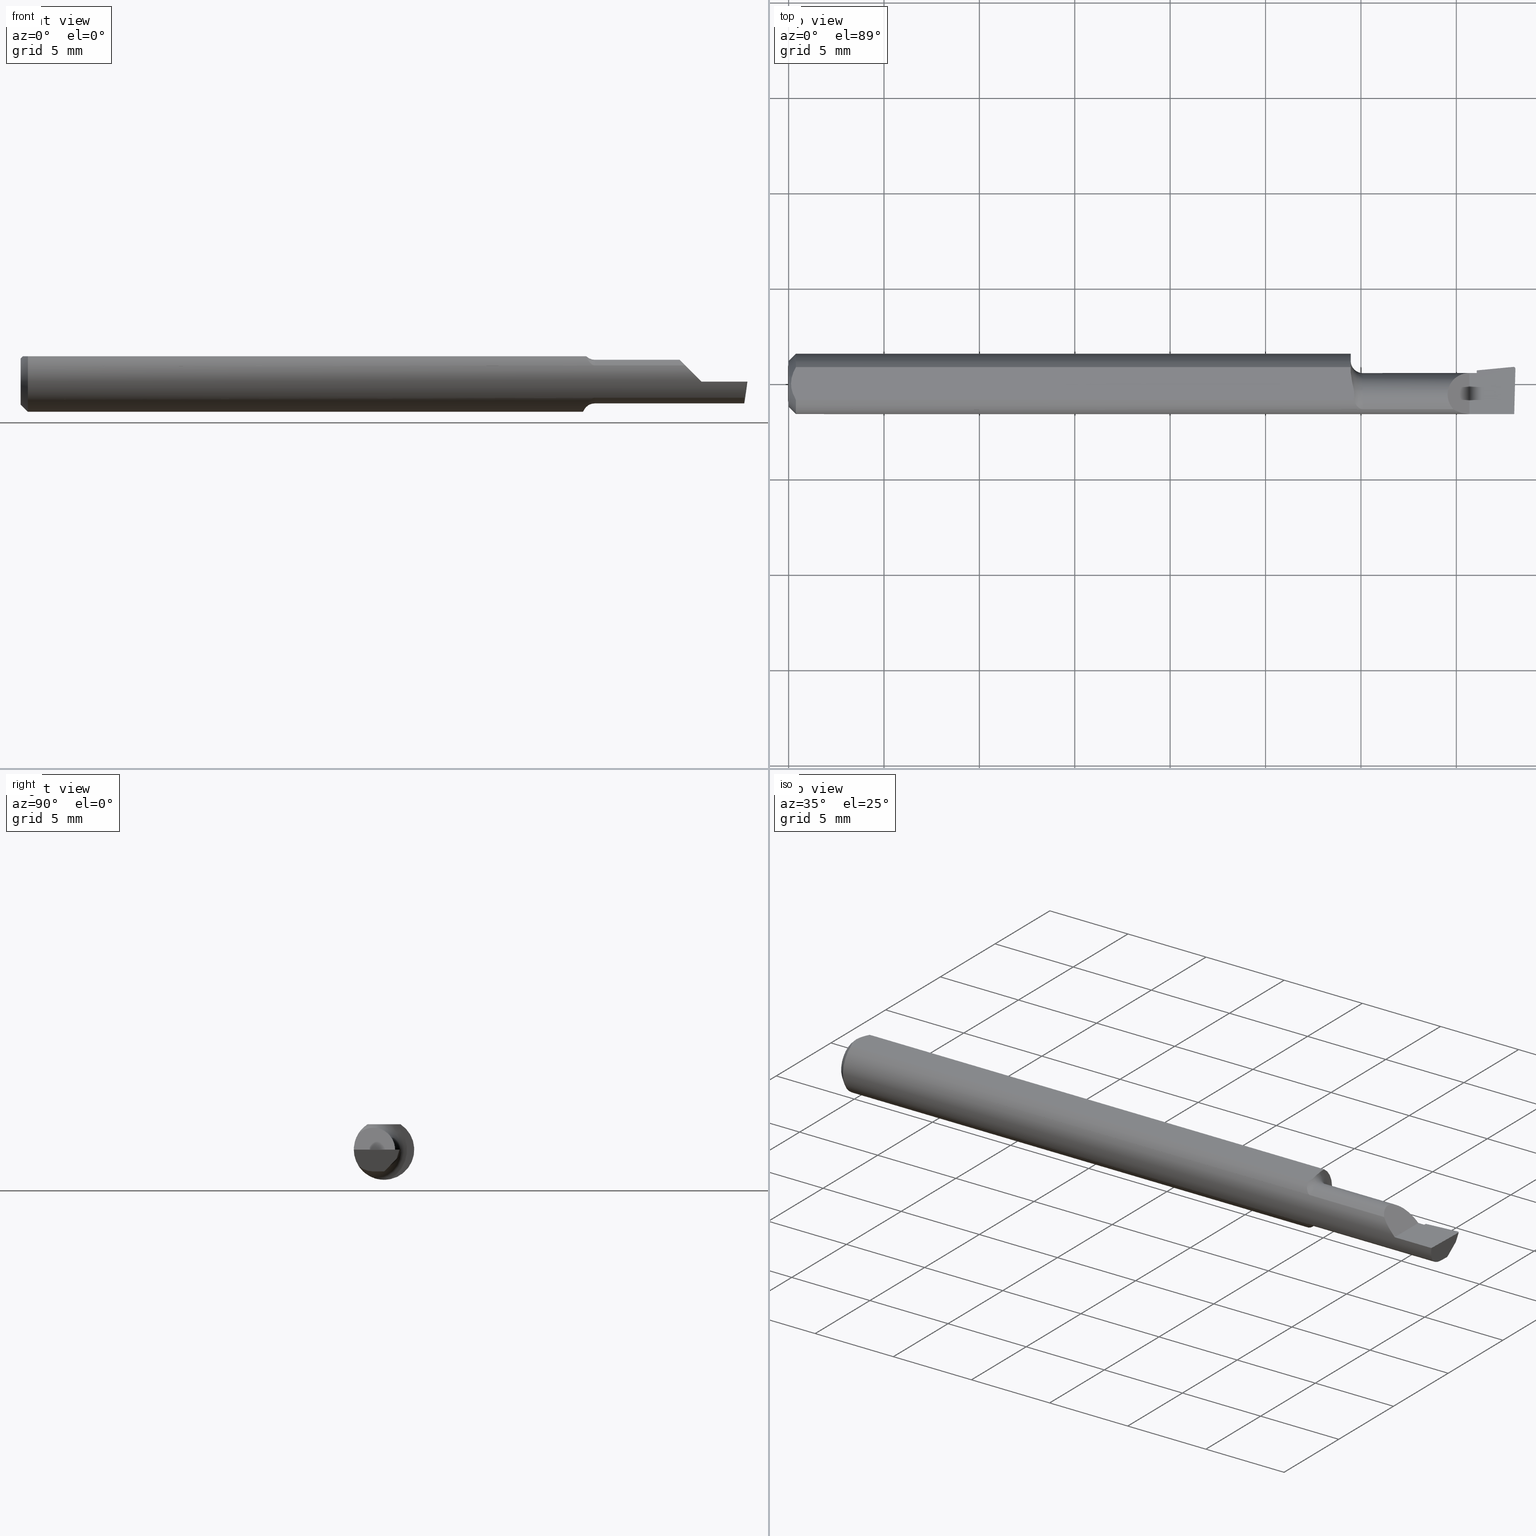
[diagram: canonical four-view strip — front | top / right | iso, engineering-drawing reading convention]
A machine part, canonical four-view strip (front | top / right | iso — engineering-drawing reading convention). The complete STEP part file that produces these views, byte-faithful:
ISO-10303-21;
HEADER;
FILE_DESCRIPTION (( 'STEP AP214' ),
    '1' );
FILE_NAME ('B100300R.STEP',
    '2020-05-08T22:22:15',
    ( '' ),
    ( '' ),
    'SwSTEP 2.0',
    'SolidWorks 2018',
    '' );
FILE_SCHEMA (( 'AUTOMOTIVE_DESIGN' ));
ENDSEC;

DATA;
#1 = LINE ( 'NONE', #372, #264 ) ;
#2 = VECTOR ( 'NONE', #171, 39.37007874015748143 ) ;
#3 = ORIENTED_EDGE ( 'NONE', *, *, #639, .F. ) ;
#4 = PRESENTATION_LAYER_ASSIGNMENT (  '', '', ( #644 ) ) ;
#5 = VECTOR ( 'NONE', #374, 39.37007874015748854 ) ;
#6 = LENGTH_MEASURE_WITH_UNIT ( LENGTH_MEASURE( 0.02539999999999999897 ), #418 );
#7 = EDGE_CURVE ( 'NONE', #462, #244, #517, .T. ) ;
#8 = ORIENTED_EDGE ( 'NONE', *, *, #9, .F. ) ;
#9 = EDGE_CURVE ( 'NONE', #100, #75, #201, .T. ) ;
#10 = DIRECTION ( 'NONE',  ( -1.000000000000000000, -0.0000000000000000000, -0.0000000000000000000 ) ) ;
#11 = CARTESIAN_POINT ( 'NONE',  ( 0.0000000000000000000, -0.02240000000000000324, 0.0000000000000000000 ) ) ;
#12 = LINE ( 'NONE', #481, #2 ) ;
#13 = CARTESIAN_POINT ( 'NONE',  ( 0.009678036133109307534, -0.02325481837211496039, 0.05235000000000000070 ) ) ;
#14 = CARTESIAN_POINT ( 'NONE',  ( 1.493589448587071544, -0.05267366071428577351, -0.03336177403790612644 ) ) ;
#15 = CARTESIAN_POINT ( 'NONE',  ( 1.498384822753108914, 0.03264131821163467062, -0.01250862198832605743 ) ) ;
#16 = DIRECTION ( 'NONE',  ( 5.691349986800549142E-18, -1.000000000000000000, 0.0000000000000000000 ) ) ;
#17 = LINE ( 'NONE', #91, #563 ) ;
#18 = ORIENTED_EDGE ( 'NONE', *, *, #45, .T. ) ;
#19 = CARTESIAN_POINT ( 'NONE',  ( 1.160000000000000142, 0.01155624999999988432, -0.06126969549408175369 ) ) ;
#20 = DIRECTION ( 'NONE',  ( -0.7071067811865432429, 0.0000000000000000000, -0.7071067811865517916 ) ) ;
#21 = UNCERTAINTY_MEASURE_WITH_UNIT (LENGTH_MEASURE( 1.000000000000000082E-05 ), #454, 'distance_accuracy_value', 'NONE');
#22 =( CONVERSION_BASED_UNIT ( 'INCH', #477 ) LENGTH_UNIT ( ) NAMED_UNIT ( #565 ) );
#23 = DIRECTION ( 'NONE',  ( 0.0000000000000000000, 0.0000000000000000000, -1.000000000000000000 ) ) ;
#24 = VERTEX_POINT ( 'NONE', #139 ) ;
#25 = PLANE ( 'NONE',  #479 ) ;
#26 = CARTESIAN_POINT ( 'NONE',  ( 1.166182189689074944, -0.03386738844375222074, 0.05235000000000000070 ) ) ;
#27 = CIRCLE ( 'NONE', #113, 0.04504999999999999283 ) ;
#28 = PLANE ( 'NONE',  #575 ) ;
#29 = EDGE_LOOP ( 'NONE', ( #411, #263 ) ) ;
#30 = DIRECTION ( 'NONE',  ( 1.000000000000000000, 0.0000000000000000000, 0.0000000000000000000 ) ) ;
#31 = CARTESIAN_POINT ( 'NONE',  ( 1.163943373083574873, -0.0009488278625737596667, 0.05234999999999998682 ) ) ;
#32 = CARTESIAN_POINT ( 'NONE',  ( 0.009669996313769784607, 0.02323004575534281385, 0.05234999999999998682 ) ) ;
#33 = PRESENTATION_LAYER_ASSIGNMENT (  '', '', ( #613 ) ) ;
#34 = DIMENSIONAL_EXPONENTS ( 1.000000000000000000, 0.0000000000000000000, 0.0000000000000000000, 0.0000000000000000000, 0.0000000000000000000, 0.0000000000000000000, 0.0000000000000000000 ) ;
#35 = CARTESIAN_POINT ( 'NONE',  ( 1.160000000000000142, 0.04764999999999997016, 0.0000000000000000000 ) ) ;
#36 = ORIENTED_EDGE ( 'NONE', *, *, #245, .F. ) ;
#37 = MECHANICAL_DESIGN_GEOMETRIC_PRESENTATION_REPRESENTATION (  '', ( #644 ), #65 ) ;
#38 = CARTESIAN_POINT ( 'NONE',  ( 1.166182189689074944, -0.03386738844375222074, 0.05235000000000000070 ) ) ;
#39 = EDGE_CURVE ( 'NONE', #574, #462, #94, .T. ) ;
#40 = EDGE_LOOP ( 'NONE', ( #588, #209, #419 ) ) ;
#41 = VECTOR ( 'NONE', #489, 39.37007874015748143 ) ;
#42 = ORIENTED_EDGE ( 'NONE', *, *, #502, .T. ) ;
#43 = CARTESIAN_POINT ( 'NONE',  ( 1.159999999999995923, 0.004792881695547034603, -0.06254535345742004426 ) ) ;
#44 = ORIENTED_EDGE ( 'NONE', *, *, #89, .F. ) ;
#45 = EDGE_CURVE ( 'NONE', #181, #198, #518, .T. ) ;
#46 = DIRECTION ( 'NONE',  ( 5.691349986800549142E-18, -1.000000000000000000, 7.598598113218357399E-17 ) ) ;
#47 = AXIS2_PLACEMENT_3D ( 'NONE', #615, #238, #662 ) ;
#48 = ORIENTED_EDGE ( 'NONE', *, *, #103, .F. ) ;
#49 = FACE_OUTER_BOUND ( 'NONE', #380, .T. ) ;
#50 = ORIENTED_EDGE ( 'NONE', *, *, #285, .F. ) ;
#51 = ORIENTED_EDGE ( 'NONE', *, *, #151, .F. ) ;
#52 = VERTEX_POINT ( 'NONE', #614 ) ;
#53 = VECTOR ( 'NONE', #668, 39.37007874015748143 ) ;
#54 = DIRECTION ( 'NONE',  ( 5.691349986800549142E-18, -1.000000000000000000, 0.0000000000000000000 ) ) ;
#55 = LINE ( 'NONE', #487, #202 ) ;
#56 = CARTESIAN_POINT ( 'NONE',  ( 1.510364203804932748, 0.03234793331252792947, -0.01400000000000000376 ) ) ;
#57 =( BOUNDED_CURVE ( )  B_SPLINE_CURVE ( 3, ( #328, #304, #651, #265 ),
 .UNSPECIFIED., .F., .T. ) 
 B_SPLINE_CURVE_WITH_KNOTS ( ( 4, 4 ),
 ( 3.064097098354602089, 3.156599629463157086 ),
 .UNSPECIFIED. ) 
 CURVE ( )  GEOMETRIC_REPRESENTATION_ITEM ( )  RATIONAL_B_SPLINE_CURVE ( ( 1.000000000000000000, 0.9992870672494015283, 0.9992870672494015283, 1.000000000000000000 ) ) 
 REPRESENTATION_ITEM ( '' )  );
#58 = ORIENTED_EDGE ( 'NONE', *, *, #210, .T. ) ;
#59 = DIRECTION ( 'NONE',  ( 5.691349986800549142E-18, -1.000000000000000000, 0.0000000000000000000 ) ) ;
#60 = ORIENTED_EDGE ( 'NONE', *, *, #103, .T. ) ;
#61 = CARTESIAN_POINT ( 'NONE',  ( 0.8971276994979847652, -0.02239999999999999977, 7.383056331043944924E-17 ) ) ;
#62 = MECHANICAL_DESIGN_GEOMETRIC_PRESENTATION_REPRESENTATION (  '', ( #613 ), #98 ) ;
#63 = CARTESIAN_POINT ( 'NONE',  ( 1.160000000000000142, 0.03386738844375224156, 0.05235000000000000070 ) ) ;
#64 = CARTESIAN_POINT ( 'NONE',  ( 1.160000000000000142, 0.02414546164772668826, 0.05235000000000000070 ) ) ;
#65 =( GEOMETRIC_REPRESENTATION_CONTEXT ( 3 ) GLOBAL_UNCERTAINTY_ASSIGNED_CONTEXT ( ( #21 ) ) GLOBAL_UNIT_ASSIGNED_CONTEXT ( ( #454, #460, #464 ) ) REPRESENTATION_CONTEXT ( 'NONE', 'WORKASPACE' ) );
#66 = CARTESIAN_POINT ( 'NONE',  ( 1.495634880358085672, 0.03522968678441162904, 5.345729797365519968E-19 ) ) ;
#67 = COLOUR_RGB ( '',0.7529411764705882248, 0.7529411764705882248, 0.7529411764705882248 ) ;
#68 = EDGE_CURVE ( 'NONE', #369, #391, #158, .T. ) ;
#69 = CARTESIAN_POINT ( 'NONE',  ( 1.499944638786153472, 0.03353584053852150942, 8.035340521517367735E-18 ) ) ;
#70 = VERTEX_POINT ( 'NONE', #19 ) ;
#71 = ORIENTED_EDGE ( 'NONE', *, *, #536, .F. ) ;
#72 = CARTESIAN_POINT ( 'NONE',  ( 1.420000000000000151, -0.006476468102432248429, -0.04504999999999998589 ) ) ;
#73 =( NAMED_UNIT ( * ) SI_UNIT ( $, .STERADIAN. ) SOLID_ANGLE_UNIT ( ) );
#74 = CARTESIAN_POINT ( 'NONE',  ( 2.249639673992788601E-32, -0.06234999999999999570, 1.836970198721030427E-16 ) ) ;
#75 = VERTEX_POINT ( 'NONE', #72 ) ;
#76 = DIRECTION ( 'NONE',  ( 1.000000000000000000, 5.691349986800549142E-18, 0.0000000000000000000 ) ) ;
#77 = CARTESIAN_POINT ( 'NONE',  ( 1.167516889514667700, -0.02435447415594420989, 0.05235000000000000070 ) ) ;
#78 = CARTESIAN_POINT ( 'NONE',  ( 0.0000000000000000000, 0.0000000000000000000, 0.0000000000000000000 ) ) ;
#79 = EDGE_CURVE ( 'NONE', #470, #213, #572, .T. ) ;
#80 = CIRCLE ( 'NONE', #138, 0.06235000000000000264 ) ;
#81 = ORIENTED_EDGE ( 'NONE', *, *, #314, .T. ) ;
#82 = CARTESIAN_POINT ( 'NONE',  ( 1.164818038875745421, -0.004579228880846302439, 0.05235000000000001458 ) ) ;
#83 = AXIS2_PLACEMENT_3D ( 'NONE', #35, #564, #239 ) ;
#84 = ORIENTED_EDGE ( 'NONE', *, *, #7, .F. ) ;
#85 = LINE ( 'NONE', #189, #356 ) ;
#86 = CARTESIAN_POINT ( 'NONE',  ( 0.01500000000000000465, 0.03386738844375223462, 0.05234999999999997988 ) ) ;
#87 = CARTESIAN_POINT ( 'NONE',  ( 1.393107270290912858, -0.06235000000000000264, 0.01189272970908752079 ) ) ;
#88 = CARTESIAN_POINT ( 'NONE',  ( 1.167873522747514325, -0.03849383661596396389, 0.04935695859860207008 ) ) ;
#89 = EDGE_CURVE ( 'NONE', #52, #470, #357, .T. ) ;
#90 = DIRECTION ( 'NONE',  ( 0.0000000000000000000, 0.9524855432518783971, -0.3045837978228226883 ) ) ;
#91 = CARTESIAN_POINT ( 'NONE',  ( 1.492951399889240971, -0.02221542591032727582, -0.04504999999999998589 ) ) ;
#92 = ORIENTED_EDGE ( 'NONE', *, *, #308, .F. ) ;
#93 = ORIENTED_EDGE ( 'NONE', *, *, #39, .F. ) ;
#94 = LINE ( 'NONE', #236, #623 ) ;
#95 = ORIENTED_EDGE ( 'NONE', *, *, #214, .T. ) ;
#96 = FACE_OUTER_BOUND ( 'NONE', #29, .T. ) ;
#97 = FACE_OUTER_BOUND ( 'NONE', #631, .T. ) ;
#98 =( GEOMETRIC_REPRESENTATION_CONTEXT ( 3 ) GLOBAL_UNCERTAINTY_ASSIGNED_CONTEXT ( ( #452 ) ) GLOBAL_UNIT_ASSIGNED_CONTEXT ( ( #22, #384, #73 ) ) REPRESENTATION_CONTEXT ( 'NONE', 'WORKASPACE' ) );
#99 = AXIS2_PLACEMENT_3D ( 'NONE', #485, #425, #59 ) ;
#100 = VERTEX_POINT ( 'NONE', #172 ) ;
#101 = VECTOR ( 'NONE', #327, 39.37007874015748143 ) ;
#102 = ORIENTED_EDGE ( 'NONE', *, *, #308, .T. ) ;
#103 = EDGE_CURVE ( 'NONE', #626, #513, #135, .T. ) ;
#104 = ORIENTED_EDGE ( 'NONE', *, *, #416, .T. ) ;
#105 = CARTESIAN_POINT ( 'NONE',  ( 1.509953961983671933, 0.03660845752520203861, 0.0000000000000000000 ) ) ;
#106 = VECTOR ( 'NONE', #675, 39.37007874015748143 ) ;
#107 = VECTOR ( 'NONE', #595, 39.37007874015748143 ) ;
#108 = ORIENTED_EDGE ( 'NONE', *, *, #147, .F. ) ;
#109 = DIRECTION ( 'NONE',  ( -0.06894566448119622548, 0.7160281025913035613, -0.6946583704589933683 ) ) ;
#110 = EDGE_CURVE ( 'NONE', #574, #626, #57, .T. ) ;
#111 = DIRECTION ( 'NONE',  ( -0.0000000000000000000, 1.000000000000000000, -0.0000000000000000000 ) ) ;
#112 = CIRCLE ( 'NONE', #324, 0.04504999999999997201 ) ;
#113 = AXIS2_PLACEMENT_3D ( 'NONE', #217, #583, #184 ) ;
#114 = CARTESIAN_POINT ( 'NONE',  ( 0.01500000000000185039, -0.03386738844380016850, 0.05235000000000000070 ) ) ;
#115 = CARTESIAN_POINT ( 'NONE',  ( 1.499880855614015962, 0.03110005946548963576, 2.797005382439469068E-20 ) ) ;
#116 = EDGE_CURVE ( 'NONE', #470, #531, #55, .T. ) ;
#117 = DIRECTION ( 'NONE',  ( 5.691349986800549142E-18, -1.000000000000000000, 0.0000000000000000000 ) ) ;
#118 = ORIENTED_EDGE ( 'NONE', *, *, #619, .F. ) ;
#119 = LINE ( 'NONE', #274, #101 ) ;
#120 = ORIENTED_EDGE ( 'NONE', *, *, #68, .F. ) ;
#121 = FACE_OUTER_BOUND ( 'NONE', #541, .T. ) ;
#122 = CARTESIAN_POINT ( 'NONE',  ( 1.420000000000000151, 0.01811171944543692874, -0.01970540757188761136 ) ) ;
#123 = CARTESIAN_POINT ( 'NONE',  ( 1.496461277308440030, 0.03065349357661048199, -0.01436668378927335663 ) ) ;
#124 = EDGE_LOOP ( 'NONE', ( #204, #667, #221 ) ) ;
#125 = CARTESIAN_POINT ( 'NONE',  ( 1.492525117049605887, -0.2498042633013223268, 9.154091479201484239E-19 ) ) ;
#126 = CARTESIAN_POINT ( 'NONE',  ( 1.381685276638327631, -0.05903713403021959572, 0.02331472336167217385 ) ) ;
#127 = CARTESIAN_POINT ( 'NONE',  ( 1.494167560590867749, 0.03076208604347173067, -0.01402709660331437347 ) ) ;
#128 = DIRECTION ( 'NONE',  ( -0.1240019227988993916, -0.3022330132596629526, -0.9451342385281364944 ) ) ;
#129 = ORIENTED_EDGE ( 'NONE', *, *, #402, .F. ) ;
#130 = CARTESIAN_POINT ( 'NONE',  ( 1.162747134522028603, 0.004017454403653751213, 0.05235000000000000764 ) ) ;
#131 = DIRECTION ( 'NONE',  ( -1.224646799147353947E-16, 0.0000000000000000000, -1.000000000000000000 ) ) ;
#132 = DIRECTION ( 'NONE',  ( 0.0000000000000000000, -1.000000000000000000, 4.268512490100411895E-17 ) ) ;
#133 = FACE_OUTER_BOUND ( 'NONE', #330, .T. ) ;
#134 = CARTESIAN_POINT ( 'NONE',  ( 0.004999999999989931769, 7.898418181085889318E-16, 0.05235000000000000070 ) ) ;
#135 =( BOUNDED_CURVE ( )  B_SPLINE_CURVE ( 3, ( #127, #123, #183, #228 ),
 .UNSPECIFIED., .F., .T. ) 
 B_SPLINE_CURVE_WITH_KNOTS ( ( 4, 4 ),
 ( 3.156599629463157086, 4.715023529952363290 ),
 .UNSPECIFIED. ) 
 CURVE ( )  GEOMETRIC_REPRESENTATION_ITEM ( )  RATIONAL_B_SPLINE_CURVE ( ( 1.000000000000000000, 0.8076450242550531344, 0.8076450242550531344, 1.000000000000000000 ) ) 
 REPRESENTATION_ITEM ( '' )  );
#136 = CARTESIAN_POINT ( 'NONE',  ( 1.179654899318486105, -0.05157034440792585689, 0.03505133412385295910 ) ) ;
#137 = CARTESIAN_POINT ( 'NONE',  ( 1.500053207916534070, 0.03152013807843875165, 0.001313657550806776901 ) ) ;
#138 = AXIS2_PLACEMENT_3D ( 'NONE', #227, #602, #282 ) ;
#139 = CARTESIAN_POINT ( 'NONE',  ( 0.0000000000000000000, 6.717187693324806899E-18, 0.04734999999999965625 ) ) ;
#140 = ORIENTED_EDGE ( 'NONE', *, *, #110, .T. ) ;
#141 = DIRECTION ( 'NONE',  ( -1.000000000000000000, -5.691349986800549142E-18, -0.0000000000000000000 ) ) ;
#142 = CARTESIAN_POINT ( 'NONE',  ( 1.497433779686219379, -0.06235000000000005121, 3.231995301756449018E-19 ) ) ;
#143 = VERTEX_POINT ( 'NONE', #205 ) ;
#144 = CARTESIAN_POINT ( 'NONE',  ( 1.302500000000000213, -0.05267366071428577351, -0.03336177403790612644 ) ) ;
#145 = FACE_OUTER_BOUND ( 'NONE', #40, .T. ) ;
#146 = VECTOR ( 'NONE', #661, 39.37007874015748854 ) ;
#147 = EDGE_CURVE ( 'NONE', #362, #391, #410, .T. ) ;
#148 = CARTESIAN_POINT ( 'NONE',  ( 1.178775713346481790, -0.05116520334387900798, -0.03564627526859115436 ) ) ;
#149 = EDGE_LOOP ( 'NONE', ( #331, #579, #42, #71, #185, #3, #303, #44 ) ) ;
#150 = VERTEX_POINT ( 'NONE', #424 ) ;
#151 = EDGE_CURVE ( 'NONE', #391, #442, #376, .T. ) ;
#152 = AXIS2_PLACEMENT_3D ( 'NONE', #618, #195, #90 ) ;
#153 = AXIS2_PLACEMENT_3D ( 'NONE', #11, #533, #476 ) ;
#154 = EDGE_CURVE ( 'NONE', #269, #626, #273, .T. ) ;
#155 = ORIENTED_EDGE ( 'NONE', *, *, #9, .T. ) ;
#156 = PRESENTATION_STYLE_ASSIGNMENT (( #415 ) ) ;
#157 = FACE_OUTER_BOUND ( 'NONE', #124, .T. ) ;
#158 = LINE ( 'NONE', #494, #106 ) ;
#159 = ORIENTED_EDGE ( 'NONE', *, *, #611, .F. ) ;
#160 = DIRECTION ( 'NONE',  ( 0.0000000000000000000, 0.0000000000000000000, 1.000000000000000000 ) ) ;
#161 = VECTOR ( 'NONE', #443, 39.37007874015748143 ) ;
#162 = EDGE_LOOP ( 'NONE', ( #260, #637, #421, #253, #388, #465, #621, #118, #81, #261 ) ) ;
#163 = ADVANCED_BREP_SHAPE_REPRESENTATION ( 'B100300R', ( #252, #176 ), #543 ) ;
#164 = CARTESIAN_POINT ( 'NONE',  ( 0.01500000000000000465, 7.635672792683746671E-18, 0.06235000000000000264 ) ) ;
#165 = DIRECTION ( 'NONE',  ( 1.000000000000000000, 5.691349986800549142E-18, 0.0000000000000000000 ) ) ;
#166 = ORIENTED_EDGE ( 'NONE', *, *, #89, .T. ) ;
#167 = CARTESIAN_POINT ( 'NONE',  ( 0.006057557792978142223, -0.01187252718384441616, 0.05234999999999998682 ) ) ;
#168 = DIRECTION ( 'NONE',  ( 0.1219104985252538326, 0.0000000000000000000, 0.9925410975618711440 ) ) ;
#169 = AXIS2_PLACEMENT_3D ( 'NONE', #386, #76, #444 ) ;
#170 = ORIENTED_EDGE ( 'NONE', *, *, #293, .T. ) ;
#171 = DIRECTION ( 'NONE',  ( 3.962974135542377331E-18, -0.6963153109074924352, -0.7177360153954949196 ) ) ;
#172 = CARTESIAN_POINT ( 'NONE',  ( 1.493548986703517656, 0.0006054938231418565677, -0.04504999999999999283 ) ) ;
#173 = DIRECTION ( 'NONE',  ( -1.000000000000000000, -5.691349986800549142E-18, -0.0000000000000000000 ) ) ;
#174 = CARTESIAN_POINT ( 'NONE',  ( 1.420000000000000151, 0.02442187865123201032, -0.01147666661066421533 ) ) ;
#175 = PRODUCT ( 'B100300R', 'B100300R', '', ( #514 ) ) ;
#176 = AXIS2_PLACEMENT_3D ( 'NONE', #467, #508, #510 ) ;
#177 = EDGE_CURVE ( 'NONE', #100, #513, #296, .T. ) ;
#178 = FILL_AREA_STYLE_COLOUR ( '', #67 ) ;
#179 = CARTESIAN_POINT ( 'NONE',  ( 1.185000000000000275, -0.02239999999999999630, 0.0000000000000000000 ) ) ;
#180 = LINE ( 'NONE', #435, #41 ) ;
#181 = VERTEX_POINT ( 'NONE', #63 ) ;
#182 = CARTESIAN_POINT ( 'NONE',  ( 1.496007920276498648, 0.03524764111161338836, 0.0000000000000000000 ) ) ;
#183 = CARTESIAN_POINT ( 'NONE',  ( 1.497690526998707305, 0.02804183703948719478, -0.01718068703854500057 ) ) ;
#184 = DIRECTION ( 'NONE',  ( 0.0000000000000000000, -1.000000000000000000, 0.0000000000000000000 ) ) ;
#185 = ORIENTED_EDGE ( 'NONE', *, *, #511, .F. ) ;
#186 = CARTESIAN_POINT ( 'NONE',  ( 1.496007920276498648, 0.03524764111161338836, 0.0000000000000000000 ) ) ;
#187 = CARTESIAN_POINT ( 'NONE',  ( 1.162172826817815530, 0.006508548278878150024, 0.05235000000000000070 ) ) ;
#188 = EDGE_CURVE ( 'NONE', #143, #75, #12, .T. ) ;
#189 = CARTESIAN_POINT ( 'NONE',  ( -2.563953169053420290E-19, 0.02264999999999996183, 1.836970198721030427E-16 ) ) ;
#190 = ORIENTED_EDGE ( 'NONE', *, *, #7, .T. ) ;
#191 = CARTESIAN_POINT ( 'NONE',  ( 1.185000000000000275, -0.05267366071428580820, 0.03336177403790609175 ) ) ;
#192 = AXIS2_PLACEMENT_3D ( 'NONE', #297, #566, #243 ) ;
#193 = CARTESIAN_POINT ( 'NONE',  ( 1.500000000000000222, 0.1123499999999999915, 0.05234999999999998682 ) ) ;
#194 = EDGE_CURVE ( 'NONE', #213, #531, #371, .T. ) ;
#195 = DIRECTION ( 'NONE',  ( -0.1240019227988993916, -0.3022330132596629526, -0.9451342385281364944 ) ) ;
#196 = CARTESIAN_POINT ( 'NONE',  ( 1.500000000000000222, -0.02239999999999999630, -0.04504999999999998589 ) ) ;
#197 = CARTESIAN_POINT ( 'NONE',  ( 0.01500000000000185039, -0.03386738844380016850, 0.05235000000000000070 ) ) ;
#198 = VERTEX_POINT ( 'NONE', #64 ) ;
#199 = EDGE_LOOP ( 'NONE', ( #104, #548, #271, #347, #527 ) ) ;
#200 = CARTESIAN_POINT ( 'NONE',  ( 1.174327038483182095, -0.04799382633214956118, -0.03989142061000430783 ) ) ;
#201 = LINE ( 'NONE', #438, #146 ) ;
#202 = VECTOR ( 'NONE', #111, 39.37007874015748143 ) ;
#203 = VECTOR ( 'NONE', #550, 39.37007874015748854 ) ;
#204 = ORIENTED_EDGE ( 'NONE', *, *, #194, .F. ) ;
#205 = CARTESIAN_POINT ( 'NONE',  ( 1.420000000000000151, -0.001476535193823069530, -0.03989625446711349277 ) ) ;
#206 =( BOUNDED_CURVE ( )  B_SPLINE_CURVE ( 3, ( #225, #69, #496, #186 ),
 .UNSPECIFIED., .F., .T. ) 
 B_SPLINE_CURVE_WITH_KNOTS ( ( 4, 4 ),
 ( 1.953092279228404671, 3.511516179717623309 ),
 .UNSPECIFIED. ) 
 CURVE ( )  GEOMETRIC_REPRESENTATION_ITEM ( )  RATIONAL_B_SPLINE_CURVE ( ( 1.000000000000000000, 0.8076450242550503589, 0.8076450242550503589, 1.000000000000000000 ) ) 
 REPRESENTATION_ITEM ( '' )  );
#207 = AXIS2_PLACEMENT_3D ( 'NONE', #78, #447, #389 ) ;
#208 = PRODUCT_DEFINITION ( 'UNKNOWN', '', #242, #587 ) ;
#209 = ORIENTED_EDGE ( 'NONE', *, *, #188, .T. ) ;
#210 = EDGE_CURVE ( 'NONE', #599, #181, #180, .T. ) ;
#211 = CARTESIAN_POINT ( 'NONE',  ( 0.0000000000000000000, 0.0000000000000000000, 0.0000000000000000000 ) ) ;
#212 = CIRCLE ( 'NONE', #169, 0.06235000000000000264 ) ;
#213 = VERTEX_POINT ( 'NONE', #643 ) ;
#214 = EDGE_CURVE ( 'NONE', #647, #462, #301, .T. ) ;
#215 = CARTESIAN_POINT ( 'NONE',  ( 0.004999999999989931769, 7.898418181085889318E-16, 0.05235000000000000070 ) ) ;
#216 = AXIS2_PLACEMENT_3D ( 'NONE', #56, #109, #633 ) ;
#217 = CARTESIAN_POINT ( 'NONE',  ( 1.420000000000000151, -0.02239999999999999630, 0.0000000000000000000 ) ) ;
#218 = EDGE_CURVE ( 'NONE', #352, #362, #119, .T. ) ;
#219 = CARTESIAN_POINT ( 'NONE',  ( 1.371638225962093838, -0.05267366071428578739, 0.03336177403790611951 ) ) ;
#220 = CARTESIAN_POINT ( 'NONE',  ( 1.420000000000000151, 0.02794687614419681318, 0.0000000000000000000 ) ) ;
#221 = ORIENTED_EDGE ( 'NONE', *, *, #116, .T. ) ;
#222 = B_SPLINE_CURVE_WITH_KNOTS ( 'NONE', 3,
 ( #501, #390, #554, #187, #130, #497, #31, #394, #82, #339, #446, #77, #335, #26 ),
 .UNSPECIFIED., .F., .F.,
 ( 4, 2, 2, 2, 2, 2, 4 ),
 ( 0.008234143088603523147, 0.008591734916881400841, 0.008770530831020339688, 0.008859928788089806509, 0.008949326745159275065, 0.009306918573437151024, 0.009664510401715026983 ),
 .UNSPECIFIED. ) ;
#223 = CARTESIAN_POINT ( 'NONE',  ( 1.495883579913029671, 0.03524764111161339530, 8.532676796529436165E-18 ) ) ;
#224 = SURFACE_STYLE_FILL_AREA ( #598 ) ;
#225 = CARTESIAN_POINT ( 'NONE',  ( 1.499880855614015962, 0.03110005946548963576, 2.797005382439469068E-20 ) ) ;
#226 = LINE ( 'NONE', #144, #53 ) ;
#227 = CARTESIAN_POINT ( 'NONE',  ( 0.01500000000000000465, 0.0000000000000000000, 0.0000000000000000000 ) ) ;
#228 = CARTESIAN_POINT ( 'NONE',  ( 1.497145952778602185, 0.02443421182165930391, -0.02084524377084975844 ) ) ;
#229 = DIRECTION ( 'NONE',  ( 1.000000000000000000, 5.691349986800549142E-18, 0.0000000000000000000 ) ) ;
#230 = ORIENTED_EDGE ( 'NONE', *, *, #154, .F. ) ;
#231 = CARTESIAN_POINT ( 'NONE',  ( 1.493880948194808544, 0.03095478369585228512, -0.01336835189448975364 ) ) ;
#232 = CIRCLE ( 'NONE', #627, 0.07004999999999995952 ) ;
#233 = FILL_AREA_STYLE_COLOUR ( '', #432 ) ;
#234 = LINE ( 'NONE', #164, #523 ) ;
#235 = DIRECTION ( 'NONE',  ( -1.000000000000000000, -5.691349986800549142E-18, -0.0000000000000000000 ) ) ;
#236 = CARTESIAN_POINT ( 'NONE',  ( 1.510364203804932748, 0.03234793331252792947, -0.01400000000000000376 ) ) ;
#237 = CARTESIAN_POINT ( 'NONE',  ( 1.420000000000000151, 0.02364685013702381988, -0.01400000000000000203 ) ) ;
#238 = DIRECTION ( 'NONE',  ( 1.000000000000000000, 0.0000000000000000000, 0.0000000000000000000 ) ) ;
#239 = DIRECTION ( 'NONE',  ( -5.691349986800549142E-18, 1.000000000000000000, 0.0000000000000000000 ) ) ;
#240 = ORIENTED_EDGE ( 'NONE', *, *, #571, .T. ) ;
#241 = ORIENTED_EDGE ( 'NONE', *, *, #325, .F. ) ;
#242 = PRODUCT_DEFINITION_FORMATION_WITH_SPECIFIED_SOURCE ( 'ANY', '', #175, .NOT_KNOWN. ) ;
#243 = DIRECTION ( 'NONE',  ( 0.0000000000000000000, 0.0000000000000000000, 1.000000000000000000 ) ) ;
#244 = VERTEX_POINT ( 'NONE', #122 ) ;
#245 = EDGE_CURVE ( 'NONE', #244, #143, #664, .T. ) ;
#246 = CARTESIAN_POINT ( 'NONE',  ( 1.168132745576695886, -0.03943215935316545656, -0.04868886658133506767 ) ) ;
#247 = VECTOR ( 'NONE', #555, 39.37007874015748854 ) ;
#248 = CLOSED_SHELL ( 'NONE', ( #468, #422, #585, #528, #635, #414, #355, #298, #473, #312, #475, #530, #365, #577, #620, #581, #567, #534, #368 ) ) ;
#249 = VERTEX_POINT ( 'NONE', #547 ) ;
#250 = EDGE_CURVE ( 'NONE', #52, #570, #634, .T. ) ;
#251 = VECTOR ( 'NONE', #165, 39.37007874015748143 ) ;
#252 = MANIFOLD_SOLID_BREP ( 'C8CBD97E-CC4C-4cc5-A546-65CA66FAC5B5-GAAFaceID16', #248 ) ;
#253 = ORIENTED_EDGE ( 'NONE', *, *, #576, .T. ) ;
#254 = AXIS2_PLACEMENT_3D ( 'NONE', #179, #493, #439 ) ;
#255 = AXIS2_PLACEMENT_3D ( 'NONE', #211, #529, #160 ) ;
#256 = EDGE_CURVE ( 'NONE', #599, #362, #80, .T. ) ;
#257 = ORIENTED_EDGE ( 'NONE', *, *, #383, .T. ) ;
#258 = VECTOR ( 'NONE', #596, 39.37007874015748143 ) ;
#259 = ORIENTED_EDGE ( 'NONE', *, *, #210, .F. ) ;
#260 = ORIENTED_EDGE ( 'NONE', *, *, #545, .F. ) ;
#261 = ORIENTED_EDGE ( 'NONE', *, *, #463, .F. ) ;
#262 = CARTESIAN_POINT ( 'NONE',  ( 0.01500000000000000465, 0.03386738844375223462, 0.05234999999999997988 ) ) ;
#263 = ORIENTED_EDGE ( 'NONE', *, *, #245, .T. ) ;
#264 = VECTOR ( 'NONE', #319, 39.37007874015748143 ) ;
#265 = CARTESIAN_POINT ( 'NONE',  ( 1.494167560590867749, 0.03076208604347173067, -0.01402709660331437347 ) ) ;
#266 = CARTESIAN_POINT ( 'NONE',  ( 1.492650040401416689, -0.03372388044486964581, -0.04504999999999998589 ) ) ;
#267 = B_SPLINE_CURVE_WITH_KNOTS ( 'NONE', 3,
 ( #348, #671, #459, #148, #515, #200, #568, #246, #622, #299, #672, #350, #43, #559 ),
 .UNSPECIFIED., .F., .F.,
 ( 4, 2, 2, 2, 2, 2, 4 ),
 ( 1.960001601931791046E-07, 0.0001315703184465656010, 0.0002629446367329380582, 0.0005256932733056829182, 0.001051190546451172530, 0.001576687819596662250, 0.002102185092742151970 ),
 .UNSPECIFIED. ) ;
#268 = PLANE ( 'NONE',  #642 ) ;
#269 = VERTEX_POINT ( 'NONE', #182 ) ;
#270 = CARTESIAN_POINT ( 'NONE',  ( 1.405000000000000249, 0.02264999999999992714, 1.163414459189985436E-17 ) ) ;
#271 = ORIENTED_EDGE ( 'NONE', *, *, #655, .T. ) ;
#272 = CARTESIAN_POINT ( 'NONE',  ( 1.497145952778602185, 0.02443421182165930391, -0.02084524377084975844 ) ) ;
#273 = LINE ( 'NONE', #591, #412 ) ;
#274 = CARTESIAN_POINT ( 'NONE',  ( 0.01500000000000000465, 0.0000000000000000000, -0.06235000000000000264 ) ) ;
#275 = PRODUCT_RELATED_PRODUCT_CATEGORY ( 'part', '', ( #175 ) ) ;
#276 = DIRECTION ( 'NONE',  ( -0.9953961983671800740, -0.09584575252021031166, 0.0000000000000000000 ) ) ;
#277 = EDGE_CURVE ( 'NONE', #70, #181, #212, .T. ) ;
#278 = SURFACE_SIDE_STYLE ('',( #224 ) ) ;
#279 = CARTESIAN_POINT ( 'NONE',  ( 1.160000000000000142, 0.1123499999999999915, 0.05234999999999998682 ) ) ;
#280 = CARTESIAN_POINT ( 'NONE',  ( 1.405000000000000249, -0.06235000000000005121, 1.163414459189985436E-17 ) ) ;
#281 = FACE_OUTER_BOUND ( 'NONE', #400, .T. ) ;
#282 = DIRECTION ( 'NONE',  ( 0.0000000000000000000, 0.0000000000000000000, 1.000000000000000000 ) ) ;
#283 = ORIENTED_EDGE ( 'NONE', *, *, #218, .F. ) ;
#284 = CARTESIAN_POINT ( 'NONE',  ( 0.004999999999989931769, 7.898418181085889318E-16, 0.05235000000000000070 ) ) ;
#285 = EDGE_CURVE ( 'NONE', #570, #269, #206, .T. ) ;
#286 = PRODUCT_DEFINITION_SHAPE ( 'NONE', 'NONE',  #208 ) ;
#287 = EDGE_LOOP ( 'NONE', ( #129, #665, #166, #309, #480, #646, #406, #108, #654, #58, #526, #630 ) ) ;
#288 = CARTESIAN_POINT ( 'NONE',  ( 1.494656860756163663, -0.05903713403021957490, -0.02331472336167221548 ) ) ;
#289 = AXIS2_PLACEMENT_3D ( 'NONE', #341, #128, #385 ) ;
#290 = AXIS2_PLACEMENT_3D ( 'NONE', #423, #420, #54 ) ;
#291 = DIRECTION ( 'NONE',  ( 0.0000000000000000000, 1.000000000000000000, -7.598598113218357399E-17 ) ) ;
#292 = CARTESIAN_POINT ( 'NONE',  ( 1.175661082963681769, -0.04915643512136035759, 0.03841395140597855112 ) ) ;
#293 = EDGE_CURVE ( 'NONE', #352, #24, #520, .T. ) ;
#294 = ORIENTED_EDGE ( 'NONE', *, *, #177, .T. ) ;
#295 = SURFACE_STYLE_FILL_AREA ( #407 ) ;
#296 = LINE ( 'NONE', #15, #434 ) ;
#297 = CARTESIAN_POINT ( 'NONE',  ( 0.0000000000000000000, 0.0000000000000000000, 0.0000000000000000000 ) ) ;
#298 = ADVANCED_FACE ( 'NONE', ( #387 ), #25, .F. ) ;
#299 = CARTESIAN_POINT ( 'NONE',  ( 1.162728993423048696, -0.02215482600002533983, -0.05866202889160992279 ) ) ;
#300 = EDGE_LOOP ( 'NONE', ( #230, #50, #569, #48 ) ) ;
#301 = LINE ( 'NONE', #174, #258 ) ;
#302 = VERTEX_POINT ( 'NONE', #336 ) ;
#303 = ORIENTED_EDGE ( 'NONE', *, *, #116, .F. ) ;
#304 = CARTESIAN_POINT ( 'NONE',  ( 1.493922339957150847, 0.03076476189203174519, -0.01400000000000001070 ) ) ;
#305 = FACE_OUTER_BOUND ( 'NONE', #472, .T. ) ;
#306 = ORIENTED_EDGE ( 'NONE', *, *, #463, .T. ) ;
#307 = ORIENTED_EDGE ( 'NONE', *, *, #154, .T. ) ;
#308 = EDGE_CURVE ( 'NONE', #471, #574, #315, .T. ) ;
#309 = ORIENTED_EDGE ( 'NONE', *, *, #79, .T. ) ;
#310 = EDGE_LOOP ( 'NONE', ( #294, #430, #461, #378, #578, #553 ) ) ;
#311 = PLANE ( 'NONE',  #216 ) ;
#312 = ADVANCED_FACE ( 'NONE', ( #305 ), #337, .F. ) ;
#313 = CARTESIAN_POINT ( 'NONE',  ( 1.493798075755717214, 0.03075279661035064047, -0.01400000000000000376 ) ) ;
#314 = EDGE_CURVE ( 'NONE', #143, #670, #499, .T. ) ;
#315 = LINE ( 'NONE', #231, #247 ) ;
#316 = VERTEX_POINT ( 'NONE', #503 ) ;
#317 = DIRECTION ( 'NONE',  ( 0.0000000000000000000, 0.0000000000000000000, 1.000000000000000000 ) ) ;
#318 =( BOUNDED_CURVE ( )  B_SPLINE_CURVE ( 3, ( #549, #223, #436, #66 ),
 .UNSPECIFIED., .F., .T. ) 
 B_SPLINE_CURVE_WITH_KNOTS ( ( 4, 4 ),
 ( 3.511516179717623309, 3.604018710826139671 ),
 .UNSPECIFIED. ) 
 CURVE ( )  GEOMETRIC_REPRESENTATION_ITEM ( )  RATIONAL_B_SPLINE_CURVE ( ( 1.000000000000000000, 0.9992870672494020834, 0.9992870672494020834, 1.000000000000000000 ) ) 
 REPRESENTATION_ITEM ( '' )  );
#319 = DIRECTION ( 'NONE',  ( 0.0000000000000000000, 1.000000000000000000, -4.268512490100411895E-17 ) ) ;
#320 = CYLINDRICAL_SURFACE ( 'NONE', #152, 0.004000000000000000083 ) ;
#321 = AXIS2_PLACEMENT_3D ( 'NONE', #649, #551, #23 ) ;
#322 = DIRECTION ( 'NONE',  ( -0.1240019227988993777, -0.3022330132596628971, -0.9451342385281363834 ) ) ;
#323 = LENGTH_MEASURE_WITH_UNIT ( LENGTH_MEASURE( 0.02539999999999999897 ), #562 );
#324 = AXIS2_PLACEMENT_3D ( 'NONE', #552, #229, #604 ) ;
#325 = EDGE_CURVE ( 'NONE', #442, #599, #582, .T. ) ;
#326 = FACE_OUTER_BOUND ( 'NONE', #310, .T. ) ;
#327 = DIRECTION ( 'NONE',  ( 0.7071067811865395791, 0.0000000000000000000, -0.7071067811865554553 ) ) ;
#328 = CARTESIAN_POINT ( 'NONE',  ( 1.493798075755717214, 0.03075279661035064047, -0.01400000000000000376 ) ) ;
#329 = DIRECTION ( 'NONE',  ( -0.7071067811865516806, 0.0000000000000000000, 0.7071067811865431318 ) ) ;
#330 = EDGE_LOOP ( 'NONE', ( #93, #140, #60, #364, #155, #370, #36, #84 ) ) ;
#331 = ORIENTED_EDGE ( 'NONE', *, *, #250, .T. ) ;
#332 =( LENGTH_UNIT ( ) NAMED_UNIT ( * ) SI_UNIT ( $, .METRE. ) );
#333 = ORIENTED_EDGE ( 'NONE', *, *, #502, .F. ) ;
#334 = CARTESIAN_POINT ( 'NONE',  ( 1.405000000000000249, -0.2500000000000000555, 1.163414459189985436E-17 ) ) ;
#335 = CARTESIAN_POINT ( 'NONE',  ( 1.167065763150419766, -0.02914627190158987358, 0.05234999999999998682 ) ) ;
#336 = CARTESIAN_POINT ( 'NONE',  ( 1.185000000000000275, -0.05267366071428584290, -0.03336177403790605706 ) ) ;
#337 = PLANE ( 'NONE',  #557 ) ;
#338 = EDGE_LOOP ( 'NONE', ( #159, #610, #521, #512, #283 ) ) ;
#339 = CARTESIAN_POINT ( 'NONE',  ( 1.166144749454605112, -0.01034308142135322885, 0.05235000000000000764 ) ) ;
#340 = CARTESIAN_POINT ( 'NONE',  ( 0.006064493299689842180, 0.01189382783781397189, 0.05235000000000000070 ) ) ;
#341 = CARTESIAN_POINT ( 'NONE',  ( 1.485933158780053276, 0.006882228698993217257, -0.07557081307649680946 ) ) ;
#342 = PLANE ( 'NONE',  #83 ) ;
#343 = CARTESIAN_POINT ( 'NONE',  ( 1.405000000000000249, -0.06235000000000005121, 1.163414459189985436E-17 ) ) ;
#344 = CARTESIAN_POINT ( 'NONE',  ( 1.169899083742320656, -0.04251446938472884518, 0.04588310374207919817 ) ) ;
#345 = FACE_OUTER_BOUND ( 'NONE', #199, .T. ) ;
#346 = ORIENTED_EDGE ( 'NONE', *, *, #511, .T. ) ;
#347 = ORIENTED_EDGE ( 'NONE', *, *, #648, .T. ) ;
#348 = CARTESIAN_POINT ( 'NONE',  ( 1.185000000000000275, -0.05267366071428584290, -0.03336177403790605706 ) ) ;
#349 = EDGE_CURVE ( 'NONE', #513, #570, #478, .T. ) ;
#350 = CARTESIAN_POINT ( 'NONE',  ( 1.160276440363477324, -0.002103274276245872560, -0.06268864719924563400 ) ) ;
#351 = CIRCLE ( 'NONE', #254, 0.04504999999999996507 ) ;
#352 = VERTEX_POINT ( 'NONE', #449 ) ;
#353 = CARTESIAN_POINT ( 'NONE',  ( 1.420000000000000151, 0.003839959974368444863, -0.03441620828959359585 ) ) ;
#354 = AXIS2_PLACEMENT_3D ( 'NONE', #426, #638, #317 ) ;
#355 = ADVANCED_FACE ( 'NONE', ( #609 ), #507, .F. ) ;
#356 = VECTOR ( 'NONE', #448, 39.37007874015748143 ) ;
#357 = LINE ( 'NONE', #74, #506 ) ;
#358 = CARTESIAN_POINT ( 'NONE',  ( 1.420000000000000151, -0.02239999999999999630, -0.04504999999999998589 ) ) ;
#359 = AXIS2_PLACEMENT_3D ( 'NONE', #334, #20, #329 ) ;
#360 = EDGE_CURVE ( 'NONE', #198, #70, #232, .T. ) ;
#361 =( CONVERSION_BASED_UNIT ( 'INCH', #323 ) LENGTH_UNIT ( ) NAMED_UNIT ( #560 ) );
#362 = VERTEX_POINT ( 'NONE', #398 ) ;
#363 = ORIENTED_EDGE ( 'NONE', *, *, #39, .T. ) ;
#364 = ORIENTED_EDGE ( 'NONE', *, *, #177, .F. ) ;
#365 = ADVANCED_FACE ( 'NONE', ( #121 ), #342, .T. ) ;
#366 =( NAMED_UNIT ( * ) PLANE_ANGLE_UNIT ( ) SI_UNIT ( $, .RADIAN. ) );
#367 =( NAMED_UNIT ( * ) SI_UNIT ( $, .STERADIAN. ) SOLID_ANGLE_UNIT ( ) );
#368 = ADVANCED_FACE ( 'NONE', ( #404 ), #320, .T. ) ;
#369 = VERTEX_POINT ( 'NONE', #38 ) ;
#370 = ORIENTED_EDGE ( 'NONE', *, *, #188, .F. ) ;
#371 =( BOUNDED_CURVE ( )  B_SPLINE_CURVE ( 3, ( #219, #486, #593, #270 ),
 .UNSPECIFIED., .F., .F. ) 
 B_SPLINE_CURVE_WITH_KNOTS ( ( 4, 4 ),
 ( 5.546277306536651963, 7.853981633974482790 ),
 .UNSPECIFIED. ) 
 CURVE ( )  GEOMETRIC_REPRESENTATION_ITEM ( )  RATIONAL_B_SPLINE_CURVE ( ( 1.000000000000000000, 0.6033122017619988453, 0.6033122017619988453, 1.000000000000000000 ) ) 
 REPRESENTATION_ITEM ( '' )  );
#372 = CARTESIAN_POINT ( 'NONE',  ( 1.420000000000000151, -0.02239999999999999630, -0.04504999999999998589 ) ) ;
#373 = CYLINDRICAL_SURFACE ( 'NONE', #153, 0.04504999999999997201 ) ;
#374 = DIRECTION ( 'NONE',  ( 0.9953961983671786307, 0.09584575252022466130, -1.219008768213809603E-16 ) ) ;
#375 = DIRECTION ( 'NONE',  ( 0.1053106618241427955, 0.6976485211320179181, 0.7086580314005263004 ) ) ;
#376 = B_SPLINE_CURVE_WITH_KNOTS ( 'NONE', 3,
 ( #114, #484, #13, #167, #538, #215 ),
 .UNSPECIFIED., .F., .F.,
 ( 4, 2, 4 ),
 ( 0.002133667072902290657, 0.002585433046183636171, 0.003037199019464981685 ),
 .UNSPECIFIED. ) ;
#377 = CARTESIAN_POINT ( 'NONE',  ( 1.490592351376191838, -0.04680632761517485724, -0.05901368851803158455 ) ) ;
#378 = ORIENTED_EDGE ( 'NONE', *, *, #624, .F. ) ;
#379 = ORIENTED_EDGE ( 'NONE', *, *, #611, .T. ) ;
#380 = EDGE_LOOP ( 'NONE', ( #409, #483, #451, #636, #524 ) ) ;
#381 = CARTESIAN_POINT ( 'NONE',  ( 1.420000000000000151, 0.003839959974368444863, -0.03441620828959359585 ) ) ;
#382 = PLANE ( 'NONE',  #359 ) ;
#383 = EDGE_CURVE ( 'NONE', #100, #316, #17, .T. ) ;
#384 =( NAMED_UNIT ( * ) PLANE_ANGLE_UNIT ( ) SI_UNIT ( $, .RADIAN. ) );
#385 = DIRECTION ( 'NONE',  ( 0.0000000000000000000, 0.9524855432518783971, -0.3045837978228226883 ) ) ;
#386 = CARTESIAN_POINT ( 'NONE',  ( 1.160000000000000142, 0.0000000000000000000, 0.0000000000000000000 ) ) ;
#387 = FACE_OUTER_BOUND ( 'NONE', #149, .T. ) ;
#388 = ORIENTED_EDGE ( 'NONE', *, *, #194, .T. ) ;
#389 = DIRECTION ( 'NONE',  ( 0.0000000000000000000, 0.0000000000000000000, 1.000000000000000000 ) ) ;
#390 = CARTESIAN_POINT ( 'NONE',  ( 1.160000000000000142, 0.01903747135664269480, 0.05235000000000000070 ) ) ;
#391 = VERTEX_POINT ( 'NONE', #197 ) ;
#392 = CIRCLE ( 'NONE', #255, 0.04734999999999965625 ) ;
#393 = DIRECTION ( 'NONE',  ( 0.0000000000000000000, 0.0000000000000000000, -1.000000000000000000 ) ) ;
#394 = CARTESIAN_POINT ( 'NONE',  ( 1.164543615195409831, -0.003431463083333151191, 0.05235000000000000764 ) ) ;
#395 = CARTESIAN_POINT ( 'NONE',  ( 0.01218518006020415448, 0.02868529347538067639, 0.05235000000000000070 ) ) ;
#396 = CYLINDRICAL_SURFACE ( 'NONE', #289, 0.004000000000000000083 ) ;
#397 = CARTESIAN_POINT ( 'NONE',  ( 1.420000000000000151, 0.02794687614419801361, 1.835460370743176819E-16 ) ) ;
#398 = CARTESIAN_POINT ( 'NONE',  ( 0.01500000000000000465, 0.0000000000000000000, -0.06235000000000000264 ) ) ;
#399 = APPLICATION_PROTOCOL_DEFINITION ( 'draft international standard', 'automotive_design', 1998, #405 ) ;
#400 = EDGE_LOOP ( 'NONE', ( #333, #307, #537, #92 ) ) ;
#401 = ORIENTED_EDGE ( 'NONE', *, *, #655, .F. ) ;
#402 = EDGE_CURVE ( 'NONE', #249, #302, #226, .T. ) ;
#403 = DIRECTION ( 'NONE',  ( -0.02617694830784707619, -0.9996573249755579260, 4.246274422243624484E-17 ) ) ;
#404 = FACE_OUTER_BOUND ( 'NONE', #300, .T. ) ;
#405 = APPLICATION_CONTEXT ( 'automotive_design' ) ;
#406 = ORIENTED_EDGE ( 'NONE', *, *, #68, .T. ) ;
#407 = FILL_AREA_STYLE ('',( #233 ) ) ;
#408 = TOROIDAL_SURFACE ( 'NONE', #573, 0.07004999999999995952, 0.02500000000000000486 ) ;
#409 = ORIENTED_EDGE ( 'NONE', *, *, #584, .F. ) ;
#410 = CIRCLE ( 'NONE', #354, 0.06235000000000000264 ) ;
#411 = ORIENTED_EDGE ( 'NONE', *, *, #619, .T. ) ;
#412 = VECTOR ( 'NONE', #322, 39.37007874015748854 ) ;
#413 = SURFACE_SIDE_STYLE ('',( #295 ) ) ;
#414 = ADVANCED_FACE ( 'NONE', ( #590 ), #525, .T. ) ;
#415 = SURFACE_STYLE_USAGE ( .BOTH. , #413 ) ;
#416 = EDGE_CURVE ( 'NONE', #302, #70, #267, .T. ) ;
#417 = LINE ( 'NONE', #495, #161 ) ;
#418 =( LENGTH_UNIT ( ) NAMED_UNIT ( * ) SI_UNIT ( $, .METRE. ) );
#419 = ORIENTED_EDGE ( 'NONE', *, *, #571, .F. ) ;
#420 = DIRECTION ( 'NONE',  ( -1.000000000000000000, -5.691349986800549142E-18, 0.0000000000000000000 ) ) ;
#421 = ORIENTED_EDGE ( 'NONE', *, *, #469, .F. ) ;
#422 = ADVANCED_FACE ( 'NONE', ( #666 ), #457, .T. ) ;
#423 = CARTESIAN_POINT ( 'NONE',  ( 1.420000000000000151, 0.02794687614419681318, 0.0000000000000000000 ) ) ;
#424 = CARTESIAN_POINT ( 'NONE',  ( 1.185000000000000275, -0.05267366071428580820, 0.03336177403790609175 ) ) ;
#425 = DIRECTION ( 'NONE',  ( -1.000000000000000000, -5.691349986800549142E-18, 0.0000000000000000000 ) ) ;
#426 = CARTESIAN_POINT ( 'NONE',  ( 0.01500000000000000465, 0.0000000000000000000, 0.0000000000000000000 ) ) ;
#427 = CARTESIAN_POINT ( 'NONE',  ( 1.420000000000000151, 0.02265000000000000346, 1.836970198721031660E-16 ) ) ;
#428 = AXIS2_PLACEMENT_3D ( 'NONE', #105, #450, #606 ) ;
#429 = DIRECTION ( 'NONE',  ( 3.962974135542377331E-18, -0.6963153109074924352, -0.7177360153954949196 ) ) ;
#430 = ORIENTED_EDGE ( 'NONE', *, *, #349, .T. ) ;
#431 = CARTESIAN_POINT ( 'NONE',  ( 1.405000000000000249, 0.02264999999999992714, 1.163414459189985436E-17 ) ) ;
#432 = COLOUR_RGB ( '',0.7529411764705882248, 0.7529411764705882248, 0.7529411764705882248 ) ;
#433 = EDGE_CURVE ( 'NONE', #542, #244, #27, .T. ) ;
#434 = VECTOR ( 'NONE', #375, 39.37007874015748854 ) ;
#435 = CARTESIAN_POINT ( 'NONE',  ( 0.0000000000000000000, 0.03386738844375223462, 0.05234999999999997988 ) ) ;
#436 = CARTESIAN_POINT ( 'NONE',  ( 1.495759144559519527, 0.03524165206609279621, 8.547915732267098835E-18 ) ) ;
#437 = DIRECTION ( 'NONE',  ( 3.962974135542377331E-18, -0.6963153109074924352, -0.7177360153954949196 ) ) ;
#438 = CARTESIAN_POINT ( 'NONE',  ( 1.497745910775796441, 0.001009611647418858643, -0.04504999999999998589 ) ) ;
#439 = DIRECTION ( 'NONE',  ( 0.0000000000000000000, -1.000000000000000000, 0.0000000000000000000 ) ) ;
#440 = EDGE_LOOP ( 'NONE', ( #401, #491, #259, #241, #51, #120 ) ) ;
#441 = LINE ( 'NONE', #61, #5 ) ;
#442 = VERTEX_POINT ( 'NONE', #284 ) ;
#443 = DIRECTION ( 'NONE',  ( -1.000000000000000000, 5.691349986800548372E-18, -0.0000000000000000000 ) ) ;
#444 = DIRECTION ( 'NONE',  ( 0.0000000000000000000, 1.000000000000000000, 0.0000000000000000000 ) ) ;
#445 = VECTOR ( 'NONE', #429, 39.37007874015748143 ) ;
#446 = CARTESIAN_POINT ( 'NONE',  ( 1.167029704074272312, -0.01497150789875727542, 0.05235000000000000764 ) ) ;
#447 = DIRECTION ( 'NONE',  ( -1.000000000000000000, -0.0000000000000000000, -0.0000000000000000000 ) ) ;
#448 = DIRECTION ( 'NONE',  ( 1.000000000000000000, 5.691349986800549142E-18, 0.0000000000000000000 ) ) ;
#449 = CARTESIAN_POINT ( 'NONE',  ( 0.0000000000000000000, 0.0000000000000000000, -0.04734999999999965625 ) ) ;
#450 = DIRECTION ( 'NONE',  ( -0.09165774897393340337, 0.9519021185660613282, -0.2923717047227305521 ) ) ;
#451 = ORIENTED_EDGE ( 'NONE', *, *, #218, .T. ) ;
#452 = UNCERTAINTY_MEASURE_WITH_UNIT (LENGTH_MEASURE( 1.000000000000000082E-05 ), #22, 'distance_accuracy_value', 'NONE');
#453 = DIRECTION ( 'NONE',  ( 0.1240019227988993500, 0.3022330132596628416, 0.9451342385281363834 ) ) ;
#454 =( CONVERSION_BASED_UNIT ( 'INCH', #6 ) LENGTH_UNIT ( ) NAMED_UNIT ( #34 ) );
#455 = CARTESIAN_POINT ( 'NONE',  ( 1.183537604150741274, -0.05267366071513947950, 0.03336177403655855161 ) ) ;
#456 = CARTESIAN_POINT ( 'NONE',  ( 1.160000000000000142, -0.02239999999999999630, 0.0000000000000000000 ) ) ;
#457 = CONICAL_SURFACE ( 'NONE', #47, 0.06235000000000000264, 0.7853981633974594923 ) ;
#458 = CARTESIAN_POINT ( 'NONE',  ( 1.495973035530412831, -0.06235000000000003734, -0.01189272970908753987 ) ) ;
#459 = CARTESIAN_POINT ( 'NONE',  ( 1.181592203943254704, -0.05228879390856555620, -0.03397671269166899211 ) ) ;
#460 =( NAMED_UNIT ( * ) PLANE_ANGLE_UNIT ( ) SI_UNIT ( $, .RADIAN. ) );
#461 = ORIENTED_EDGE ( 'NONE', *, *, #250, .F. ) ;
#462 = VERTEX_POINT ( 'NONE', #237 ) ;
#463 = EDGE_CURVE ( 'NONE', #316, #670, #417, .T. ) ;
#464 =( NAMED_UNIT ( * ) SI_UNIT ( $, .STERADIAN. ) SOLID_ANGLE_UNIT ( ) );
#465 = ORIENTED_EDGE ( 'NONE', *, *, #639, .T. ) ;
#466 = ORIENTED_EDGE ( 'NONE', *, *, #360, .T. ) ;
#467 = CARTESIAN_POINT ( 'NONE',  ( 0.0000000000000000000, 0.0000000000000000000, 0.0000000000000000000 ) ) ;
#468 = ADVANCED_FACE ( 'NONE', ( #281 ), #396, .T. ) ;
#469 = EDGE_CURVE ( 'NONE', #150, #302, #351, .T. ) ;
#470 = VERTEX_POINT ( 'NONE', #280 ) ;
#471 = VERTEX_POINT ( 'NONE', #601 ) ;
#472 = EDGE_LOOP ( 'NONE', ( #170, #379 ) ) ;
#473 = ADVANCED_FACE ( 'NONE', ( #157 ), #382, .F. ) ;
#474 = DIRECTION ( 'NONE',  ( 0.7071067811865395791, 8.659560562355030233E-17, 0.7071067811865554553 ) ) ;
#475 = ADVANCED_FACE ( 'NONE', ( #49 ), #592, .T. ) ;
#476 = DIRECTION ( 'NONE',  ( 5.691349986800549913E-18, -1.000000000000000000, 0.0000000000000000000 ) ) ;
#477 = LENGTH_MEASURE_WITH_UNIT ( LENGTH_MEASURE( 0.02539999999999999897 ), #332 );
#478 = LINE ( 'NONE', #137, #625 ) ;
#479 = AXIS2_PLACEMENT_3D ( 'NONE', #653, #131, #498 ) ;
#480 = ORIENTED_EDGE ( 'NONE', *, *, #576, .F. ) ;
#481 = CARTESIAN_POINT ( 'NONE',  ( 1.420000000000000151, 0.003839959974368444863, -0.03441620828959359585 ) ) ;
#482 = PLANE ( 'NONE',  #99 ) ;
#483 = ORIENTED_EDGE ( 'NONE', *, *, #293, .F. ) ;
#484 = CARTESIAN_POINT ( 'NONE',  ( 0.01216137397042175820, -0.02864146636719541034, 0.05235000000000000070 ) ) ;
#485 = CARTESIAN_POINT ( 'NONE',  ( 1.420000000000000151, 0.02794687614419681318, 0.0000000000000000000 ) ) ;
#486 = CARTESIAN_POINT ( 'NONE',  ( 1.341051366671215384, -0.01896673977657555368, 0.06394863332878404638 ) ) ;
#487 = CARTESIAN_POINT ( 'NONE',  ( 1.405000000000000249, -0.2500000000000000555, 1.163414459189985436E-17 ) ) ;
#488 = DIRECTION ( 'NONE',  ( -1.000000000000000000, -5.691349986800549142E-18, 0.0000000000000000000 ) ) ;
#489 = DIRECTION ( 'NONE',  ( 1.000000000000000000, 0.0000000000000000000, 0.0000000000000000000 ) ) ;
#490 = ORIENTED_EDGE ( 'NONE', *, *, #433, .F. ) ;
#491 = ORIENTED_EDGE ( 'NONE', *, *, #45, .F. ) ;
#492 = CARTESIAN_POINT ( 'NONE',  ( 1.371638225962093838, -0.05267366071428578739, 0.03336177403790611951 ) ) ;
#493 = DIRECTION ( 'NONE',  ( -1.000000000000000000, -5.691349986800549142E-18, -0.0000000000000000000 ) ) ;
#494 = CARTESIAN_POINT ( 'NONE',  ( 0.0000000000000000000, -0.03386738844375222768, 0.05234999999999997988 ) ) ;
#495 = CARTESIAN_POINT ( 'NONE',  ( 1.500000000000000222, -0.02239999999999999630, -0.04504999999999998589 ) ) ;
#496 = CARTESIAN_POINT ( 'NONE',  ( 1.498346190944504830, 0.03524764111161336755, 8.231093924805310805E-18 ) ) ;
#497 = CARTESIAN_POINT ( 'NONE',  ( 1.163640393495456893, 0.0002918085034137845170, 0.05234999999999998682 ) ) ;
#498 = DIRECTION ( 'NONE',  ( -1.000000000000000000, 0.0000000000000000000, 1.224646799147353947E-16 ) ) ;
#499 = CIRCLE ( 'NONE', #522, 0.04504999999999999283 ) ;
#500 = ORIENTED_EDGE ( 'NONE', *, *, #277, .T. ) ;
#501 = CARTESIAN_POINT ( 'NONE',  ( 1.160000000000000142, 0.02414546164772668826, 0.05235000000000000070 ) ) ;
#502 = EDGE_CURVE ( 'NONE', #269, #471, #318, .T. ) ;
#503 = CARTESIAN_POINT ( 'NONE',  ( 1.492946566646605078, -0.02239999999999999630, -0.04504999999999998589 ) ) ;
#504 = CARTESIAN_POINT ( 'NONE',  ( 1.182134555967766731, -0.05240678568573015755, 0.03378794548805856557 ) ) ;
#505 = FACE_OUTER_BOUND ( 'NONE', #546, .T. ) ;
#506 = VECTOR ( 'NONE', #10, 39.37007874015748143 ) ;
#507 = PLANE ( 'NONE',  #659 ) ;
#508 = DIRECTION ( 'NONE',  ( 0.0000000000000000000, 0.0000000000000000000, 1.000000000000000000 ) ) ;
#509 = DIRECTION ( 'NONE',  ( 0.0000000000000000000, -1.000000000000000000, 0.0000000000000000000 ) ) ;
#510 = DIRECTION ( 'NONE',  ( 1.000000000000000000, 0.0000000000000000000, 0.0000000000000000000 ) ) ;
#511 = EDGE_CURVE ( 'NONE', #542, #647, #603, .T. ) ;
#512 = ORIENTED_EDGE ( 'NONE', *, *, #256, .T. ) ;
#513 = VERTEX_POINT ( 'NONE', #272 ) ;
#514 = PRODUCT_CONTEXT ( 'NONE', #405, 'mechanical' ) ;
#515 = CARTESIAN_POINT ( 'NONE',  ( 1.177568494155622592, -0.05043275970182651419, -0.03668598949093543338 ) ) ;
#516 = APPLICATION_CONTEXT ( 'automotive_design' ) ;
#517 = LINE ( 'NONE', #353, #445 ) ;
#518 = LINE ( 'NONE', #279, #608 ) ;
#519 = APPLICATION_PROTOCOL_DEFINITION ( 'draft international standard', 'automotive_design', 1998, #516 ) ;
#520 = CIRCLE ( 'NONE', #207, 0.04734999999999965625 ) ;
#521 = ORIENTED_EDGE ( 'NONE', *, *, #325, .T. ) ;
#522 = AXIS2_PLACEMENT_3D ( 'NONE', #558, #235, #612 ) ;
#523 = VECTOR ( 'NONE', #474, 39.37007874015748143 ) ;
#524 = ORIENTED_EDGE ( 'NONE', *, *, #151, .T. ) ;
#525 = CYLINDRICAL_SURFACE ( 'NONE', #192, 0.06235000000000000264 ) ;
#526 = ORIENTED_EDGE ( 'NONE', *, *, #277, .F. ) ;
#527 = ORIENTED_EDGE ( 'NONE', *, *, #469, .T. ) ;
#528 = ADVANCED_FACE ( 'NONE', ( #145 ), #544, .T. ) ;
#529 = DIRECTION ( 'NONE',  ( -1.000000000000000000, -0.0000000000000000000, -0.0000000000000000000 ) ) ;
#530 = ADVANCED_FACE ( 'NONE', ( #345 ), #408, .F. ) ;
#531 = VERTEX_POINT ( 'NONE', #431 ) ;
#532 = PLANE ( 'NONE',  #290 ) ;
#533 = DIRECTION ( 'NONE',  ( -1.000000000000000000, -5.691349986800549142E-18, -0.0000000000000000000 ) ) ;
#534 = ADVANCED_FACE ( 'NONE', ( #326 ), #268, .F. ) ;
#535 = LINE ( 'NONE', #586, #251 ) ;
#536 = EDGE_CURVE ( 'NONE', #647, #471, #441, .T. ) ;
#537 = ORIENTED_EDGE ( 'NONE', *, *, #110, .F. ) ;
#538 = CARTESIAN_POINT ( 'NONE',  ( 0.004999999999998879473, -0.005957634400466955450, 0.05235000000000000070 ) ) ;
#539 = DIRECTION ( 'NONE',  ( -0.9922060308645520577, 0.02598182930466753221, 0.1218693434051185409 ) ) ;
#540 = AXIS2_PLACEMENT_3D ( 'NONE', #220, #488, #117 ) ;
#541 = EDGE_LOOP ( 'NONE', ( #500, #18, #466 ) ) ;
#542 = VERTEX_POINT ( 'NONE', #427 ) ;
#543 =( GEOMETRIC_REPRESENTATION_CONTEXT ( 3 ) GLOBAL_UNCERTAINTY_ASSIGNED_CONTEXT ( ( #605 ) ) GLOBAL_UNIT_ASSIGNED_CONTEXT ( ( #361, #366, #367 ) ) REPRESENTATION_CONTEXT ( 'NONE', 'WORKASPACE' ) );
#544 = PLANE ( 'NONE',  #540 ) ;
#545 = EDGE_CURVE ( 'NONE', #249, #316, #674, .T. ) ;
#546 = EDGE_LOOP ( 'NONE', ( #673, #102, #363, #600 ) ) ;
#547 = CARTESIAN_POINT ( 'NONE',  ( 1.493589448587071544, -0.05267366071428577351, -0.03336177403790612644 ) ) ;
#548 = ORIENTED_EDGE ( 'NONE', *, *, #360, .F. ) ;
#549 = CARTESIAN_POINT ( 'NONE',  ( 1.496007920276498648, 0.03524764111161338836, 0.0000000000000000000 ) ) ;
#550 = DIRECTION ( 'NONE',  ( 0.02617694830784707966, 0.9996573249755579260, -3.158139334220691399E-18 ) ) ;
#551 = DIRECTION ( 'NONE',  ( 1.000000000000000000, 0.0000000000000000000, 0.0000000000000000000 ) ) ;
#552 = CARTESIAN_POINT ( 'NONE',  ( 1.420000000000000151, -0.02239999999999999630, 0.0000000000000000000 ) ) ;
#553 = ORIENTED_EDGE ( 'NONE', *, *, #383, .F. ) ;
#554 = CARTESIAN_POINT ( 'NONE',  ( 1.160684336333183575, 0.01400540109987312605, 0.05234999999999998682 ) ) ;
#555 = DIRECTION ( 'NONE',  ( -0.1240019227988993500, -0.3022330132596628971, -0.9451342385281363834 ) ) ;
#556 = DIRECTION ( 'NONE',  ( 2.429359850419095604E-34, 4.268512490100411895E-17, 1.000000000000000000 ) ) ;
#557 = AXIS2_PLACEMENT_3D ( 'NONE', #607, #30, #393 ) ;
#558 = CARTESIAN_POINT ( 'NONE',  ( 1.420000000000000151, -0.02239999999999999630, 0.0000000000000000000 ) ) ;
#559 = CARTESIAN_POINT ( 'NONE',  ( 1.160000000000000142, 0.01155624999999988432, -0.06126969549408175369 ) ) ;
#560 = DIMENSIONAL_EXPONENTS ( 1.000000000000000000, 0.0000000000000000000, 0.0000000000000000000, 0.0000000000000000000, 0.0000000000000000000, 0.0000000000000000000, 0.0000000000000000000 ) ;
#561 = VECTOR ( 'NONE', #437, 39.37007874015748143 ) ;
#562 =( LENGTH_UNIT ( ) NAMED_UNIT ( * ) SI_UNIT ( $, .METRE. ) );
#563 = VECTOR ( 'NONE', #403, 39.37007874015748854 ) ;
#564 = DIRECTION ( 'NONE',  ( 1.000000000000000000, 5.691349986800549142E-18, 0.0000000000000000000 ) ) ;
#565 = DIMENSIONAL_EXPONENTS ( 1.000000000000000000, 0.0000000000000000000, 0.0000000000000000000, 0.0000000000000000000, 0.0000000000000000000, 0.0000000000000000000, 0.0000000000000000000 ) ;
#566 = DIRECTION ( 'NONE',  ( -1.000000000000000000, -0.0000000000000000000, -0.0000000000000000000 ) ) ;
#567 = ADVANCED_FACE ( 'NONE', ( #96 ), #482, .F. ) ;
#568 = CARTESIAN_POINT ( 'NONE',  ( 1.172612635401776959, -0.04600867268841647012, -0.04219264322731255956 ) ) ;
#569 = ORIENTED_EDGE ( 'NONE', *, *, #349, .F. ) ;
#570 = VERTEX_POINT ( 'NONE', #115 ) ;
#571 = EDGE_CURVE ( 'NONE', #670, #75, #1, .T. ) ;
#572 =( BOUNDED_CURVE ( )  B_SPLINE_CURVE ( 3, ( #343, #87, #126, #492 ),
 .UNSPECIFIED., .F., .F. ) 
 B_SPLINE_CURVE_WITH_KNOTS ( ( 4, 4 ),
 ( 4.712388980384689674, 5.276982613231239405 ),
 .UNSPECIFIED. ) 
 CURVE ( )  GEOMETRIC_REPRESENTATION_ITEM ( )  RATIONAL_B_SPLINE_CURVE ( ( 1.000000000000000000, 0.9736121104788257874, 0.9736121104788257874, 1.000000000000000000 ) ) 
 REPRESENTATION_ITEM ( '' )  );
#573 = AXIS2_PLACEMENT_3D ( 'NONE', #597, #173, #16 ) ;
#574 = VERTEX_POINT ( 'NONE', #313 ) ;
#575 = AXIS2_PLACEMENT_3D ( 'NONE', #196, #556, #132 ) ;
#576 = EDGE_CURVE ( 'NONE', #150, #213, #535, .T. ) ;
#577 = ADVANCED_FACE ( 'NONE', ( #658 ), #373, .T. ) ;
#578 = ORIENTED_EDGE ( 'NONE', *, *, #545, .T. ) ;
#579 = ORIENTED_EDGE ( 'NONE', *, *, #285, .T. ) ;
#580 = CARTESIAN_POINT ( 'NONE',  ( 1.494167560590867749, 0.03076208604347173067, -0.01402709660331437347 ) ) ;
#581 = ADVANCED_FACE ( 'NONE', ( #133 ), #311, .T. ) ;
#582 = B_SPLINE_CURVE_WITH_KNOTS ( 'NONE', 3,
 ( #134, #660, #340, #32, #395, #86 ),
 .UNSPECIFIED., .F., .F.,
 ( 4, 2, 4 ),
 ( 0.003037199019464981685, 0.003488061124369676216, 0.003938923229274370746 ),
 .UNSPECIFIED. ) ;
#583 = DIRECTION ( 'NONE',  ( -1.000000000000000000, -5.691349986800549142E-18, -0.0000000000000000000 ) ) ;
#584 = EDGE_CURVE ( 'NONE', #24, #442, #234, .T. ) ;
#585 = ADVANCED_FACE ( 'NONE', ( #640 ), #532, .T. ) ;
#586 = CARTESIAN_POINT ( 'NONE',  ( 1.302500000000000213, -0.05267366071428577351, 0.03336177403790612644 ) ) ;
#587 = PRODUCT_DEFINITION_CONTEXT ( 'detailed design', #516, 'design' ) ;
#588 = ORIENTED_EDGE ( 'NONE', *, *, #314, .F. ) ;
#589 = CARTESIAN_POINT ( 'NONE',  ( 1.492946566646605078, -0.02239999999999999630, -0.04504999999999998589 ) ) ;
#590 = FACE_OUTER_BOUND ( 'NONE', #287, .T. ) ;
#591 = CARTESIAN_POINT ( 'NONE',  ( 1.485933158780053276, 0.01069217087200073114, -0.07678914826778809877 ) ) ;
#592 = CONICAL_SURFACE ( 'NONE', #321, 0.06235000000000000264, 0.7853981633974594923 ) ;
#593 = CARTESIAN_POINT ( 'NONE',  ( 1.359483931624303699, 0.02264999999999997571, 0.04551606837569584230 ) ) ;
#594 = B_SPLINE_CURVE_WITH_KNOTS ( 'NONE', 3,
 ( #656, #88, #344, #617, #292, #663, #136, #504, #455, #191 ),
 .UNSPECIFIED., .F., .F.,
 ( 4, 2, 2, 2, 4 ),
 ( 3.797231421928045814E-07, 0.0004333373953855913481, 0.0006498162315072879497, 0.0007580556495681327811, 0.0008662950676289775040 ),
 .UNSPECIFIED. ) ;
#595 = DIRECTION ( 'NONE',  ( -5.691349986800549142E-18, 1.000000000000000000, 6.969893544162626646E-34 ) ) ;
#596 = DIRECTION ( 'NONE',  ( 1.671023757235065686E-18, -0.2936076258024062913, -0.9559260233253795702 ) ) ;
#597 = CARTESIAN_POINT ( 'NONE',  ( 1.185000000000000275, -0.02239999999999999630, 0.0000000000000000000 ) ) ;
#598 = FILL_AREA_STYLE ('',( #178 ) ) ;
#599 = VERTEX_POINT ( 'NONE', #262 ) ;
#600 = ORIENTED_EDGE ( 'NONE', *, *, #214, .F. ) ;
#601 = CARTESIAN_POINT ( 'NONE',  ( 1.495634880358085672, 0.03522968678441162904, 5.345729797365519968E-19 ) ) ;
#602 = DIRECTION ( 'NONE',  ( -1.000000000000000000, -0.0000000000000000000, -0.0000000000000000000 ) ) ;
#603 = LINE ( 'NONE', #645, #107 ) ;
#604 = DIRECTION ( 'NONE',  ( 0.0000000000000000000, -1.000000000000000000, 1.776356839400250465E-15 ) ) ;
#605 = UNCERTAINTY_MEASURE_WITH_UNIT (LENGTH_MEASURE( 1.000000000000000082E-05 ), #361, 'distance_accuracy_value', 'NONE');
#606 = DIRECTION ( 'NONE',  ( 0.0000000000000000000, 0.2936076258024062913, 0.9559260233253795702 ) ) ;
#607 = CARTESIAN_POINT ( 'NONE',  ( 0.0000000000000000000, 0.0000000000000000000, 0.0000000000000000000 ) ) ;
#608 = VECTOR ( 'NONE', #46, 39.37007874015748143 ) ;
#609 = FACE_OUTER_BOUND ( 'NONE', #440, .T. ) ;
#610 = ORIENTED_EDGE ( 'NONE', *, *, #584, .T. ) ;
#611 = EDGE_CURVE ( 'NONE', #24, #352, #392, .T. ) ;
#612 = DIRECTION ( 'NONE',  ( 0.0000000000000000000, -1.000000000000000000, 0.0000000000000000000 ) ) ;
#613 = STYLED_ITEM ( 'NONE', ( #669 ), #252 ) ;
#614 = CARTESIAN_POINT ( 'NONE',  ( 1.497433779686219379, -0.06235000000000005121, 3.231995301756449018E-19 ) ) ;
#615 = CARTESIAN_POINT ( 'NONE',  ( 0.01500000000000000465, 0.0000000000000000000, 0.0000000000000000000 ) ) ;
#616 = DIRECTION ( 'NONE',  ( 0.0000000000000000000, -7.598598113218357399E-17, -1.000000000000000000 ) ) ;
#617 = CARTESIAN_POINT ( 'NONE',  ( 1.174073837407042076, -0.04761084945882113756, 0.04033650601908234101 ) ) ;
#618 = CARTESIAN_POINT ( 'NONE',  ( 1.485933158780053276, 0.006882228698993217257, -0.07557081307649680946 ) ) ;
#619 = EDGE_CURVE ( 'NONE', #143, #244, #112, .T. ) ;
#620 = ADVANCED_FACE ( 'NONE', ( #505 ), #632, .T. ) ;
#621 = ORIENTED_EDGE ( 'NONE', *, *, #433, .T. ) ;
#622 = CARTESIAN_POINT ( 'NONE',  ( 1.165988988117221403, -0.03406974560157227661, -0.05264335079965581227 ) ) ;
#623 = VECTOR ( 'NONE', #276, 39.37007874015748854 ) ;
#624 = EDGE_CURVE ( 'NONE', #249, #52, #652, .T. ) ;
#625 = VECTOR ( 'NONE', #453, 39.37007874015748854 ) ;
#626 = VERTEX_POINT ( 'NONE', #580 ) ;
#627 = AXIS2_PLACEMENT_3D ( 'NONE', #456, #141, #509 ) ;
#628 = SHAPE_DEFINITION_REPRESENTATION ( #286, #163 ) ;
#629 = EDGE_LOOP ( 'NONE', ( #346, #95, #190, #490 ) ) ;
#630 = ORIENTED_EDGE ( 'NONE', *, *, #416, .F. ) ;
#631 = EDGE_LOOP ( 'NONE', ( #8, #257, #306, #240 ) ) ;
#632 = PLANE ( 'NONE',  #428 ) ;
#633 = DIRECTION ( 'NONE',  ( 0.0000000000000000000, 0.6963153109074924352, 0.7177360153954948085 ) ) ;
#634 = LINE ( 'NONE', #125, #203 ) ;
#635 = ADVANCED_FACE ( 'NONE', ( #97 ), #28, .F. ) ;
#636 = ORIENTED_EDGE ( 'NONE', *, *, #147, .T. ) ;
#637 = ORIENTED_EDGE ( 'NONE', *, *, #402, .T. ) ;
#638 = DIRECTION ( 'NONE',  ( -1.000000000000000000, -0.0000000000000000000, -0.0000000000000000000 ) ) ;
#639 = EDGE_CURVE ( 'NONE', #531, #542, #85, .T. ) ;
#640 = FACE_OUTER_BOUND ( 'NONE', #629, .T. ) ;
#641 = CARTESIAN_POINT ( 'NONE',  ( 1.492874371667013866, -0.04428776192107813231, -0.04097143695815294584 ) ) ;
#642 = AXIS2_PLACEMENT_3D ( 'NONE', #377, #539, #168 ) ;
#643 = CARTESIAN_POINT ( 'NONE',  ( 1.371638225962093838, -0.05267366071428578739, 0.03336177403790611951 ) ) ;
#644 = STYLED_ITEM ( 'NONE', ( #156 ), #163 ) ;
#645 = CARTESIAN_POINT ( 'NONE',  ( 1.420000000000000151, -0.2500000000000000555, 9.797174393178828616E-18 ) ) ;
#646 = ORIENTED_EDGE ( 'NONE', *, *, #648, .F. ) ;
#647 = VERTEX_POINT ( 'NONE', #397 ) ;
#648 = EDGE_CURVE ( 'NONE', #369, #150, #594, .T. ) ;
#649 = CARTESIAN_POINT ( 'NONE',  ( 0.01500000000000000465, 0.0000000000000000000, 0.0000000000000000000 ) ) ;
#650 = SURFACE_STYLE_USAGE ( .BOTH. , #278 ) ;
#651 = CARTESIAN_POINT ( 'NONE',  ( 1.494045589437458910, 0.03076786057889412465, -0.01400903864505088046 ) ) ;
#652 =( BOUNDED_CURVE ( )  B_SPLINE_CURVE ( 3, ( #657, #288, #458, #142 ),
 .UNSPECIFIED., .F., .T. ) 
 B_SPLINE_CURVE_WITH_KNOTS ( ( 4, 4 ),
 ( 0.7961532496683338955, 1.360746882514885181 ),
 .UNSPECIFIED. ) 
 CURVE ( )  GEOMETRIC_REPRESENTATION_ITEM ( )  RATIONAL_B_SPLINE_CURVE ( ( 1.000000000000000000, 0.9736121104788255654, 0.9736121104788255654, 1.000000000000000000 ) ) 
 REPRESENTATION_ITEM ( '' )  );
#653 = CARTESIAN_POINT ( 'NONE',  ( 1.500000000000000222, -0.2500000000000000555, 0.0000000000000000000 ) ) ;
#654 = ORIENTED_EDGE ( 'NONE', *, *, #256, .F. ) ;
#655 = EDGE_CURVE ( 'NONE', #198, #369, #222, .T. ) ;
#656 = CARTESIAN_POINT ( 'NONE',  ( 1.166182189689074944, -0.03386738844375222074, 0.05235000000000000070 ) ) ;
#657 = CARTESIAN_POINT ( 'NONE',  ( 1.493589448587071544, -0.05267366071428577351, -0.03336177403790612644 ) ) ;
#658 = FACE_OUTER_BOUND ( 'NONE', #162, .T. ) ;
#659 = AXIS2_PLACEMENT_3D ( 'NONE', #193, #616, #291 ) ;
#660 = CARTESIAN_POINT ( 'NONE',  ( 0.004999999999999264581, 0.005945714695019511074, 0.05235000000000000070 ) ) ;
#661 = DIRECTION ( 'NONE',  ( -0.9953961983671800740, -0.09584575252021028391, 2.116984158397003268E-18 ) ) ;
#662 = DIRECTION ( 'NONE',  ( 0.0000000000000000000, 0.0000000000000000000, -1.000000000000000000 ) ) ;
#663 = CARTESIAN_POINT ( 'NONE',  ( 1.178587721903974428, -0.05102224570557683386, 0.03585204334871001236 ) ) ;
#664 = LINE ( 'NONE', #381, #561 ) ;
#665 = ORIENTED_EDGE ( 'NONE', *, *, #624, .T. ) ;
#666 = FACE_OUTER_BOUND ( 'NONE', #338, .T. ) ;
#667 = ORIENTED_EDGE ( 'NONE', *, *, #79, .F. ) ;
#668 = DIRECTION ( 'NONE',  ( -1.000000000000000000, -5.691349986800549142E-18, -0.0000000000000000000 ) ) ;
#669 = PRESENTATION_STYLE_ASSIGNMENT (( #650 ) ) ;
#670 = VERTEX_POINT ( 'NONE', #358 ) ;
#671 = CARTESIAN_POINT ( 'NONE',  ( 1.183240954672475365, -0.05267366071428580820, -0.03336177403790607093 ) ) ;
#672 = CARTESIAN_POINT ( 'NONE',  ( 1.161648092746324856, -0.01564147840104309836, -0.06074236086770339743 ) ) ;
#673 = ORIENTED_EDGE ( 'NONE', *, *, #536, .T. ) ;
#674 =( BOUNDED_CURVE ( )  B_SPLINE_CURVE ( 3, ( #14, #641, #266, #589 ),
 .UNSPECIFIED., .F., .F. ) 
 B_SPLINE_CURVE_WITH_KNOTS ( ( 4, 4 ),
 ( 5.756326750816665339, 6.493234751459597831 ),
 .UNSPECIFIED. ) 
 CURVE ( )  GEOMETRIC_REPRESENTATION_ITEM ( )  RATIONAL_B_SPLINE_CURVE ( ( 1.000000000000000000, 0.9552568590268901705, 0.9552568590268901705, 1.000000000000000000 ) ) 
 REPRESENTATION_ITEM ( '' )  );
#675 = DIRECTION ( 'NONE',  ( -1.000000000000000000, -0.0000000000000000000, -0.0000000000000000000 ) ) ;
ENDSEC;
END-ISO-10303-21;
